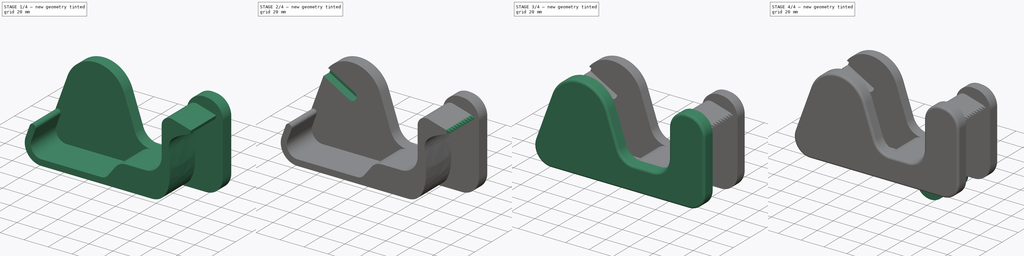
[diagram: build sequence overview — one tinted view per stage of 4, left to right]
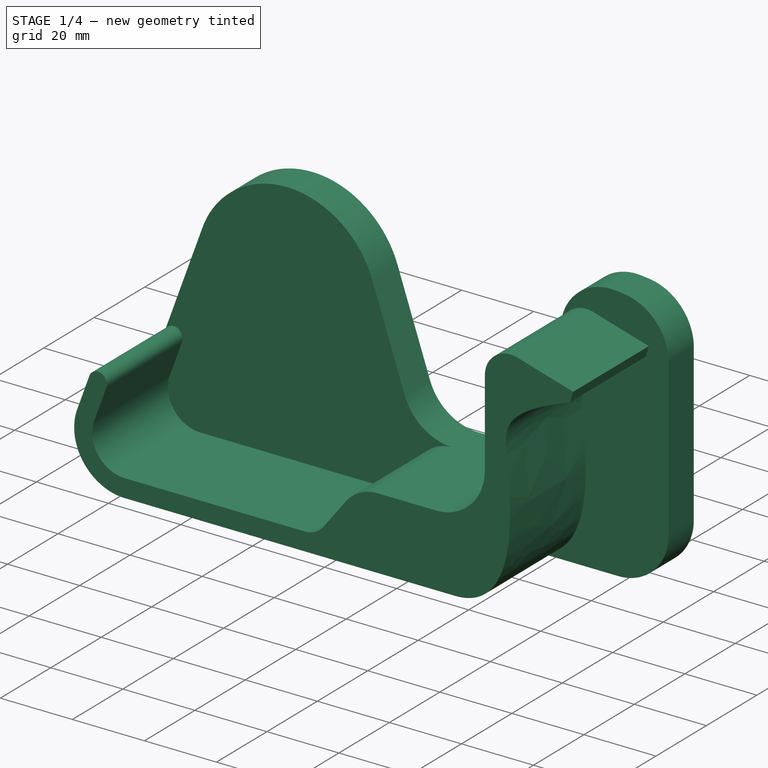
[diagram: stage 1 of 4 — iso view after this stage's code; geometry added in this stage tinted green]
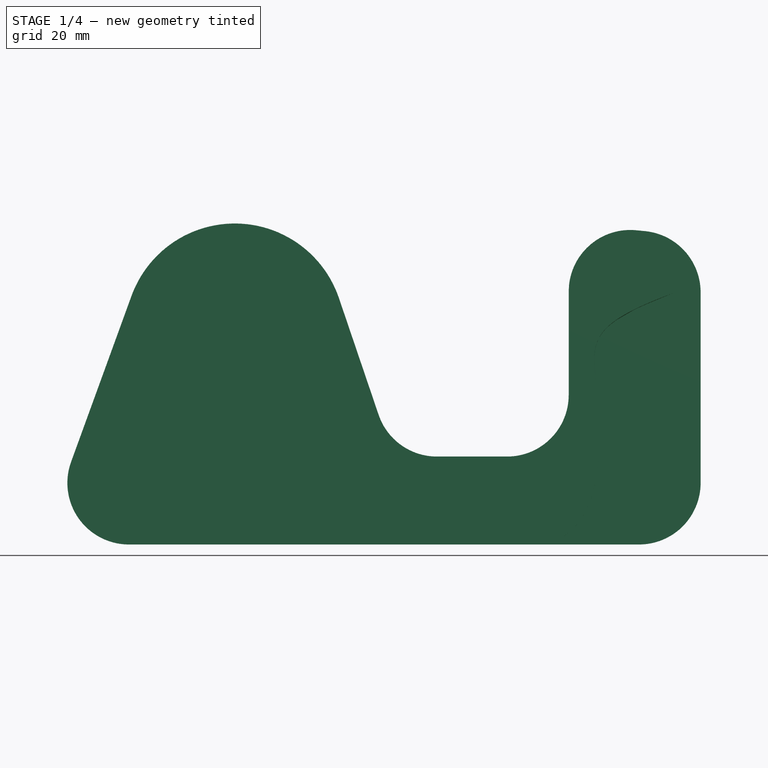
[diagram: stage 1 of 4 — front view after this stage's code; geometry added in this stage tinted green]
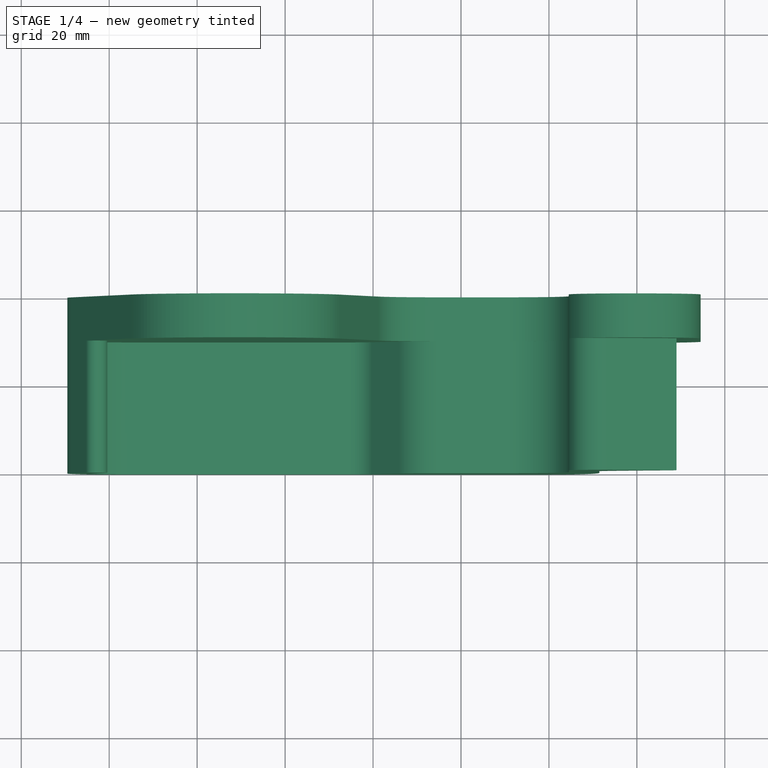
[diagram: stage 1 of 4 — top view after this stage's code; geometry added in this stage tinted green]
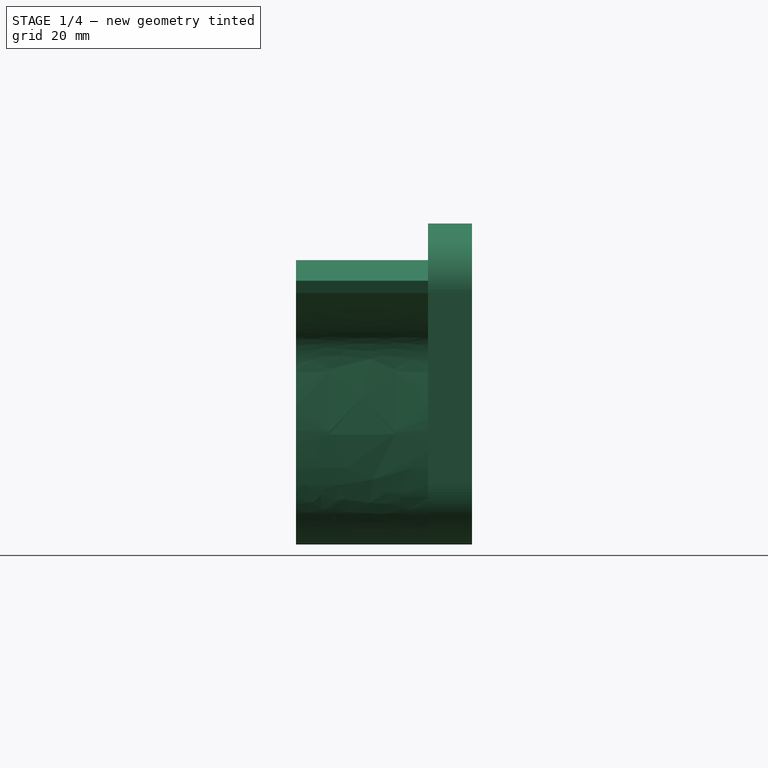
[diagram: stage 1 of 4 — right view after this stage's code; geometry added in this stage tinted green]
FCSTD DOCUMENT  (FreeCAD 1.0R39285 (Git))
Label: tape_cutter_v5
License: All rights reserved
objects: Sketcher::SketchObject×8, PartDesign::Pad×6, PartDesign::Fillet×2, PartDesign::Pocket×2, PartDesign::Body×2, PartDesign::Plane×1, PartDesign::Mirrored×1
note: 51 computed .brp shape members not serialized (recipe doc carries the construction recipe); baked Part::Feature solids carry a one-line shape summary decoded from their .brp

FEATURE [Sketcher::SketchObject] Sketch
  ArcFitTolerance = 1e-06
  AttachmentSupport = -> [XZ_Plane]
  FullyConstrained = false
  MakeInternals = false
  MapMode = 5
  Placement = pos=(0,0,0) rot=(1,0,0;1.5708rad)
  sketch-geometry (10):
    g0: Circle [constr] CenterX=-71.4307 CenterY=48 CenterZ=0 NormalX=0 NormalY=0 NormalZ=1 AngleXU=0 Radius=12.7
    g1: ArcOfCircle CenterX=-71.4307 CenterY=48 CenterZ=0 NormalX=0 NormalY=0 NormalZ=1 AngleXU=0 Radius=25 StartAngle=0.327726 EndAngle=2.79253
    g2: LineSegment StartX=-94.9231 StartY=56.5505 StartZ=0 EndX=-115.506 EndY=0 EndZ=0
    g3: LineSegment StartX=-47.7613 StartY=56.0473 StartZ=0 EndX=-35.5058 EndY=20 EndZ=0
    g4: Circle [constr] CenterX=-71.4307 CenterY=48 CenterZ=0 NormalX=0 NormalY=0 NormalZ=1 AngleXU=0 Radius=38
    g5: LineSegment StartX=-115.506 StartY=0 StartZ=0 EndX=34.4942 EndY=0 EndZ=0
    g6: LineSegment StartX=-35.5058 StartY=20 StartZ=0 EndX=4.49425 EndY=20 EndZ=0
    g7: LineSegment StartX=4.49425 StartY=20 StartZ=0 EndX=4.49425 EndY=73 EndZ=0
    g8: LineSegment StartX=4.49425 StartY=73 StartZ=0 EndX=34.4942 EndY=70 EndZ=0
    g9: LineSegment StartX=34.4942 StartY=70 StartZ=0 EndX=34.4942 EndY=0 EndZ=0
  constraints (26):
    c: Diameter(g0) = 25.4
    c: Diameter(g1) = 50
    c: Tangent(g1,g2) = -1.5708
    c: Tangent(g1,g3) = 1.5708
    c: Coincident(g1,g0)
    c: Diameter(g4) = 76
    c: Coincident(g4,g0)
    c: PointOnObject(g5,g-1)
    c: PointOnObject(g5,g-1)
    c: Coincident(g2,g5)
    c: Coincident(g3,g6)
    c: Horizontal(g6)
    c: Coincident(g6,g7)
    c: Vertical(g7)
    c: Coincident(g7,g8)
    c: Coincident(g8,g9)
    c: Coincident(g9,g5)
    c: Vertical(g9)
    c: DistanceX(g8,g8) = 30
    c: Distance(g0,g5) = 48
    c: Distance(g5,g6) = 20
    c: DistanceX(g6,g6) = 40
    c: Distance(g7,g5) = 73
    c: DistanceY(g9,g9) = 70
    c: DistanceX(g5,g5) = 150
    c: Angle(g5,g2) = 1.22173
FEATURE [PartDesign::Pad] Pad
  Direction = (0,-1,2e-16)
  Length = 10
  Length2 = 10
  Placement = pos=(0,0,0) rot=(1,0,0;1.5708rad)
  Profile = -> Sketch
  ReferenceAxis = -> Sketch [N_Axis]
  Refine = true
  Suppressed = false
  Type = 0
FEATURE [PartDesign::Fillet] Fillet
  Base = -> Pad [Edge17,Edge20,Edge5,Edge8,Edge14,Edge11]
  BaseFeature = -> Pad
  Placement = pos=(0,0,0) rot=(1,0,0;1.5708rad)
  Radius = 14
  Refine = true
  SupportTransform = false
  Suppressed = false
  UseAllEdges = false
FEATURE [Sketcher::SketchObject] Sketch001
  ArcFitTolerance = 1e-06
  AttachmentSupport = -> [Fillet]
  ExternalGeometry = -> [Fillet]
  FullyConstrained = false
  MakeInternals = false
  MapMode = 5
  Placement = pos=(0,-10,0) rot=(1,0,0;1.5708rad)
  sketch-geometry (31):
    g0: ArcOfCircle CenterX=-95.5117 CenterY=14 CenterZ=0 NormalX=0 NormalY=0 NormalZ=1 AngleXU=0 Radius=14 StartAngle=2.79253 EndAngle=4.71239
    g1: LineSegment StartX=-108.667 StartY=18.7883 StartZ=0 EndX=-105.279 EndY=28.0979 EndZ=0
    g2: ArcOfCircle CenterX=-95.5117 CenterY=14 CenterZ=0 NormalX=0 NormalY=0 NormalZ=1 AngleXU=0 Radius=9 StartAngle=2.79253 EndAngle=4.71239
    g3: LineSegment [constr] StartX=-95.5117 StartY=14 StartZ=0 EndX=-108.667 EndY=18.7883 EndZ=0
    g4: LineSegment [constr] StartX=-105.279 StartY=28.0979 StartZ=0 EndX=-91.8856 EndY=23.2232 EndZ=0
    g5: LineSegment StartX=-103.969 StartY=17.0782 StartZ=0 EndX=-100.58 EndY=26.3878 EndZ=0
    g6: ArcOfCircle CenterX=-102.93 CenterY=27.2429 CenterZ=0 NormalX=0 NormalY=0 NormalZ=1 AngleXU=0 Radius=2.5 StartAngle=5.93412 EndAngle=9.07571
    g7: LineSegment StartX=-95.5117 StartY=5 StartZ=0 EndX=-45.503 EndY=5 EndZ=0
    g8: LineSegment StartX=-95.5117 StartY=-5.3e-15 StartZ=0 EndX=-3.83506 EndY=2.2e-15 EndZ=0
    g9: LineSegment StartX=4.49425 StartY=34.042 StartZ=0 EndX=4.49425 EndY=57.5302 EndZ=0
    g10: ArcOfCircle CenterX=11.648 CenterY=57.5302 CenterZ=0 NormalX=0 NormalY=0 NormalZ=1 AngleXU=0 Radius=7.15375 StartAngle=1.28978 EndAngle=3.14159
    g11: LineSegment StartX=13.6319 StartY=64.4033 StartZ=0 EndX=29.0043 EndY=59.9661 EndZ=0
    g12: LineSegment [constr] StartX=11.648 StartY=57.5302 StartZ=0 EndX=13.6319 EndY=64.4033 EndZ=0
    g13: LineSegment [constr] StartX=4.49425 StartY=57.5302 StartZ=0 EndX=11.648 EndY=57.5302 EndZ=0
    g14: LineSegment StartX=29.0043 StartY=59.9661 StartZ=0 EndX=28.194 EndY=57.1588 EndZ=0
    g15-g19: Circle [constr] x5 (B-spline internal-alignment scaffolding for g20; pole/knot coordinates omitted)
    g20: BSplineCurve PolesCount=5 KnotsCount=3 Degree=3 IsPeriodic=0
    g21: GeomPoint [constr] X=-3.83506 Y=2.2e-15 Z=0
    g22: GeomPoint [constr] X=11.0375 Y=33.355 Z=0
    g23: GeomPoint [constr] X=28.194 Y=57.1588 Z=0
    g24: ArcOfCircle CenterX=-45.503 CenterY=11.5408 CenterZ=0 NormalX=0 NormalY=0 NormalZ=1 AngleXU=0 Radius=6.54084 StartAngle=4.71239 EndAngle=5.62454
    g25: GeomPoint [constr] X=-22.8913 Y=5 Z=0
    g26: LineSegment StartX=-40.3304 StartY=7.53753 StartZ=0 EndX=-34.0397 EndY=15.6657 EndZ=0
    g27: LineSegment StartX=-25.2044 StartY=20 StartZ=0 EndX=-9.50634 EndY=20 EndZ=0
    g28: ArcOfCircle CenterX=-25.2044 CenterY=8.82764 CenterZ=0 NormalX=0 NormalY=0 NormalZ=1 AngleXU=0 Radius=11.1724 StartAngle=1.5708 EndAngle=2.48294
    g29: GeomPoint [constr] X=-30.6852 Y=20 Z=0
    g30: ArcOfCircle CenterX=-9.19953 CenterY=33.6947 CenterZ=0 NormalX=0 NormalY=0 NormalZ=1 AngleXU=0 Radius=13.6982 StartAngle=4.68999 EndAngle=6.30854
  constraints (53):
    c: Coincident(g0,g-8)
    c: Coincident(g0,g-9)
    c: Coincident(g1,g-9)
    c: PointOnObject(g1,g-9)
    c: Radius(g2) = 9
    c: Coincident(g2,g0)
    c: Vertical(g2,g0)
    c: Coincident(g3,g0)
    c: Coincident(g3,g0)
    c: PointOnObject(g2,g3)
    c: Coincident(g4,g1)
    c: Parallel(g4,g3)
    c: Coincident(g5,g2)
    c: PointOnObject(g5,g4)
    c: Parallel(g5,g1)
    c: PointOnObject(g6,g4)
    c: Coincident(g6,g1)
    c: Coincident(g6,g5)
    c: Coincident(g7,g2)
    c: Horizontal(g7)
    c: Coincident(g9,g-6)
    c: Vertical(g9)
    c: Coincident(g10,g9)
    c: Horizontal(g10,g9)
    c: Tangent(g11,g10) = 1.5708
    c: Coincident(g12,g10)
    c: Coincident(g12,g10)
    c: Coincident(g13,g9)
    c: Coincident(g13,g10)
    c: Distance(g11,g11) = 16
    c: Coincident(g14,g11)
    c: Angle(g11,g14) = 1.5708
    c: Weight(g15) = 1
    c: Equal(g15, g16-g19) x4
    c: InternalAlignment(g15-g19 -> g20) x5
    c: InternalAlignment(g21,g20)
    c: InternalAlignment(g22,g20)
    c: InternalAlignment(g23,g20)
    c: Coincident(g19,g14)
    c: PointOnObject(g16,g-3)
    c: Coincident(g20,g8)
    c: PointOnObject(g8,g-3)
    c: PointOnObject(g25,g7)
    c: Tangent(g7,g24) = -1.5708
    c: Tangent(g24,g26) = -1.5708
    c: Horizontal(g27)
    c: PointOnObject(g29,g26)
    c: PointOnObject(g29,g27)
    c: Tangent(g26,g28) = 1.5708
    c: Tangent(g27,g28) = 1.5708
    c: Tangent(g0,g8) = -1.5708
    c: Coincident(g30,g27)
    c: Coincident(g30,g9)
FEATURE [PartDesign::Pad] Pad001
  BaseFeature = -> Fillet
  Direction = (0,-1,2e-16)
  Length = 30
  Length2 = 10
  Placement = pos=(0,0,0) rot=(1,0,0;1.5708rad)
  Profile = -> Sketch001
  ReferenceAxis = -> Sketch001 [N_Axis]
  Refine = true
  Suppressed = false
  Type = 0
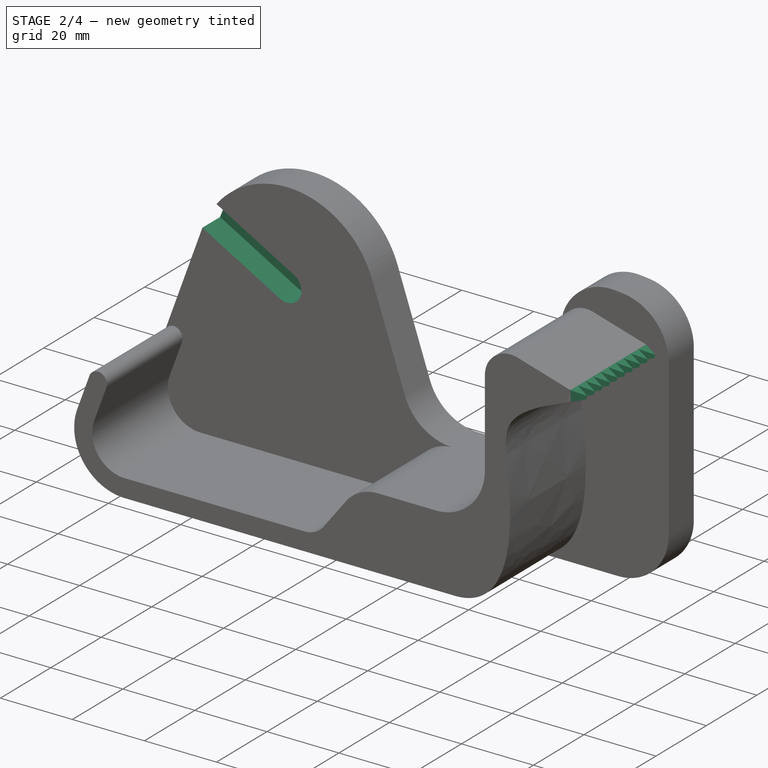
[diagram: stage 2 of 4 — iso view after this stage's code; geometry added in this stage tinted green]
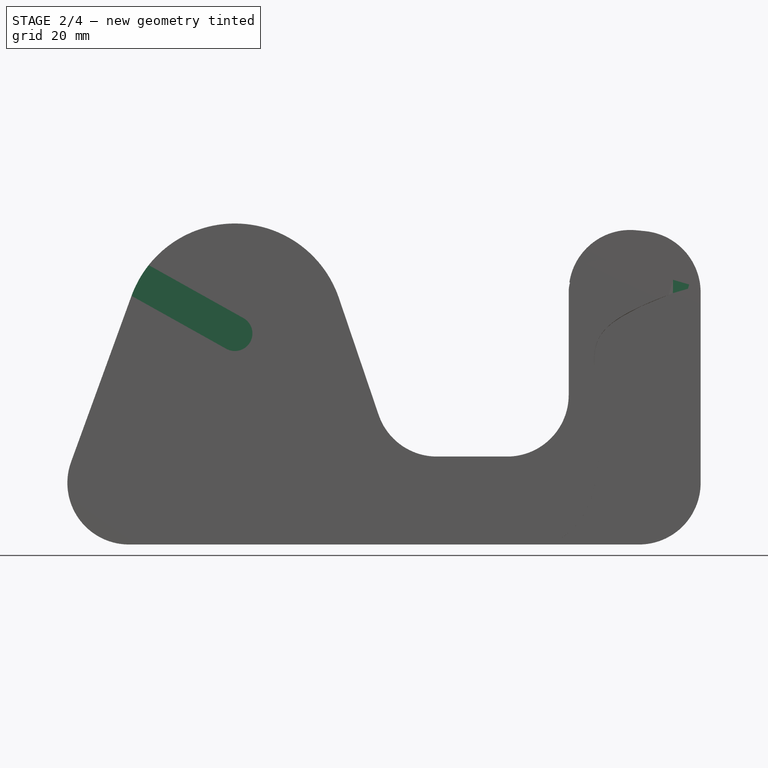
[diagram: stage 2 of 4 — front view after this stage's code; geometry added in this stage tinted green]
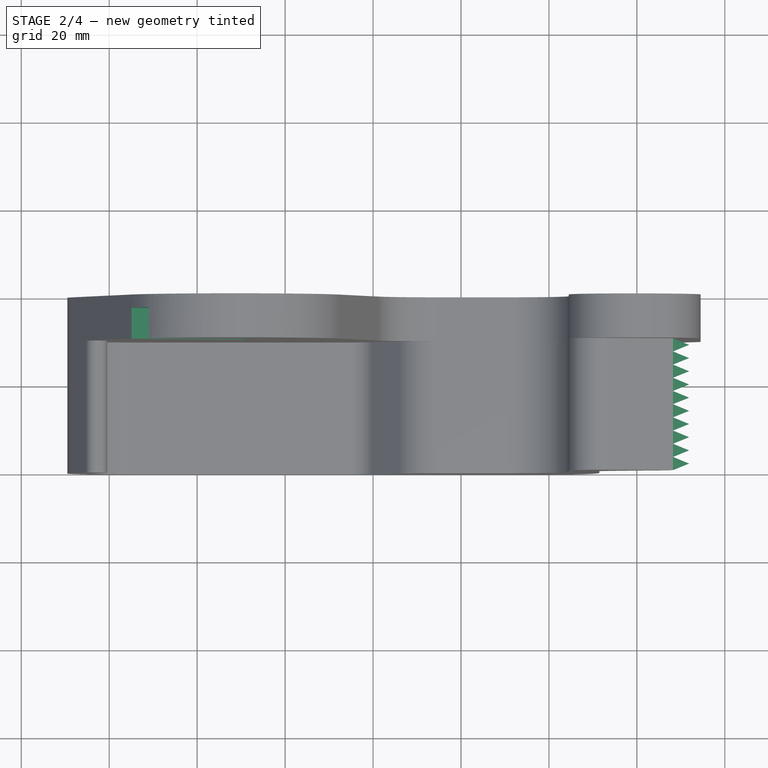
[diagram: stage 2 of 4 — top view after this stage's code; geometry added in this stage tinted green]
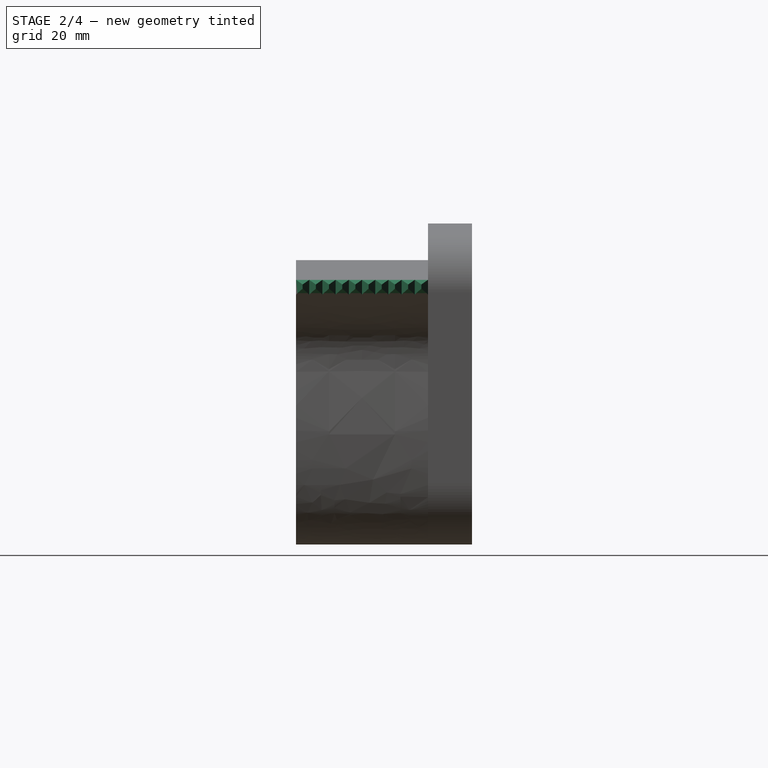
[diagram: stage 2 of 4 — right view after this stage's code; geometry added in this stage tinted green]
FEATURE [Sketcher::SketchObject] Sketch002
  ArcFitTolerance = 1e-06
  AttachmentSupport = -> [Pad001]
  ExternalGeometry = -> [Pad001]
  FullyConstrained = true
  MakeInternals = false
  MapMode = 5
  Placement = pos=(0,-10,0) rot=(1,0,0;1.5708rad)
  sketch-geometry (4):
    g0: LineSegment StartX=29.0043 StartY=59.9661 StartZ=0 EndX=31.8867 EndY=59.1341 EndZ=0
    g1: LineSegment StartX=31.8867 StartY=59.1341 StartZ=0 EndX=31.6093 EndY=58.1733 EndZ=0
    g2: LineSegment StartX=28.194 StartY=57.1588 StartZ=0 EndX=31.6093 EndY=58.1733 EndZ=0
    g3: LineSegment StartX=29.0043 StartY=59.9661 StartZ=0 EndX=28.194 EndY=57.1588 EndZ=0
  constraints (10):
    c: Coincident(g0,g-4)
    c: Angle(g0,g-4) = 3.14159
    c: Distance(g0,g0) = 3
    c: Coincident(g1,g0)
    c: Coincident(g2,g-3)
    c: Coincident(g2,g1)
    c: Angle(g0,g1) = 1.5708
    c: Distance(g1,g1) = 1
    c: Coincident(g3,g0)
    c: Coincident(g3,g2)
FEATURE [PartDesign::Pad] Pad002
  BaseFeature = -> Pad001
  Direction = (0,-1,2e-16)
  Length = 30
  Length2 = 10
  Placement = pos=(0,0,0) rot=(1,0,0;1.5708rad)
  Profile = -> Sketch002
  ReferenceAxis = -> Sketch002 [N_Axis]
  Refine = true
  Suppressed = false
  Type = 0
FEATURE [Sketcher::SketchObject] Sketch003
  ArcFitTolerance = 1e-06
  AttachmentSupport = -> [Pad002]
  ExternalGeometry = -> [Pad002]
  FullyConstrained = false
  MakeInternals = false
  MapMode = 5
  Placement = pos=(18.2087,1.57e-14,63.0822) rot=(0.140044,0,0.990145;3.14159rad)
  sketch-geometry (43):
    g0: LineSegment [constr] StartX=-10.4228 StartY=40 StartZ=0 EndX=-10.4228 EndY=37 EndZ=0
    g1: LineSegment [constr] StartX=-10.4228 StartY=37 StartZ=0 EndX=-10.4228 EndY=34 EndZ=0
    g2: LineSegment [constr] StartX=-10.4228 StartY=34 StartZ=0 EndX=-10.4228 EndY=31 EndZ=0
    g3: LineSegment [constr] StartX=-10.4228 StartY=31 StartZ=0 EndX=-10.4228 EndY=28 EndZ=0
    g4: LineSegment [constr] StartX=-10.4228 StartY=28 StartZ=0 EndX=-10.4228 EndY=25 EndZ=0
    g5: LineSegment [constr] StartX=-10.4228 StartY=25 StartZ=0 EndX=-10.4228 EndY=22 EndZ=0
    g6: LineSegment [constr] StartX=-10.4228 StartY=22 StartZ=0 EndX=-10.4228 EndY=19 EndZ=0
    g7: LineSegment [constr] StartX=-10.4228 StartY=19 StartZ=0 EndX=-10.4228 EndY=16 EndZ=0
    g8: LineSegment [constr] StartX=-10.4228 StartY=16 StartZ=0 EndX=-10.4228 EndY=13 EndZ=0
    g9: LineSegment [constr] StartX=-10.4228 StartY=13 StartZ=0 EndX=-10.4228 EndY=10 EndZ=0
    g10: LineSegment StartX=-14.2363 StartY=40 StartZ=0 EndX=-14.2363 EndY=38.5 EndZ=0
    g11: LineSegment StartX=-14.2363 StartY=38.5 StartZ=0 EndX=-14.2363 EndY=35.5 EndZ=0
    g12: LineSegment StartX=-14.2363 StartY=35.5 StartZ=0 EndX=-14.2363 EndY=32.5 EndZ=0
    g13: LineSegment StartX=-14.2363 StartY=32.5 StartZ=0 EndX=-14.2363 EndY=29.5 EndZ=0
    g14: LineSegment StartX=-14.2363 StartY=29.5 StartZ=0 EndX=-14.2363 EndY=26.5 EndZ=0
    g15: LineSegment StartX=-14.2363 StartY=26.5 StartZ=0 EndX=-14.2363 EndY=23.5 EndZ=0
    g16: LineSegment StartX=-14.2363 StartY=23.5 StartZ=0 EndX=-14.2363 EndY=20.5 EndZ=0
    g17: LineSegment StartX=-14.2363 StartY=20.5 StartZ=0 EndX=-14.2363 EndY=17.5 EndZ=0
    g18: LineSegment StartX=-14.2363 StartY=17.5 StartZ=0 EndX=-14.2363 EndY=14.5 EndZ=0
    g19: LineSegment StartX=-14.2363 StartY=14.5 StartZ=0 EndX=-14.2363 EndY=11.5 EndZ=0
    g20: LineSegment StartX=-10.4228 StartY=40 StartZ=0 EndX=-14.2363 EndY=38.5 EndZ=0
    g21: LineSegment StartX=-14.2363 StartY=38.5 StartZ=0 EndX=-10.4228 EndY=37 EndZ=0
    g22: LineSegment StartX=-10.4228 StartY=37 StartZ=0 EndX=-14.2363 EndY=35.5 EndZ=0
    g23: LineSegment StartX=-14.2363 StartY=35.5 StartZ=0 EndX=-10.4228 EndY=34 EndZ=0
    g24: LineSegment StartX=-10.4228 StartY=34 StartZ=0 EndX=-14.2363 EndY=32.5 EndZ=0
    g25: LineSegment StartX=-14.2363 StartY=32.5 StartZ=0 EndX=-10.4228 EndY=31 EndZ=0
    g26: LineSegment StartX=-10.4228 StartY=31 StartZ=0 EndX=-14.2363 EndY=29.5 EndZ=0
    g27: LineSegment StartX=-14.2363 StartY=29.5 StartZ=0 EndX=-10.4228 EndY=28 EndZ=0
    g28: LineSegment StartX=-10.4228 StartY=28 StartZ=0 EndX=-14.2363 EndY=26.5 EndZ=0
    g29: LineSegment StartX=-14.2363 StartY=26.5 StartZ=0 EndX=-10.4228 EndY=25 EndZ=0
    g30: LineSegment StartX=-10.4228 StartY=25 StartZ=0 EndX=-14.2363 EndY=23.5 EndZ=0
    g31: LineSegment StartX=-14.2363 StartY=23.5 StartZ=0 EndX=-10.4228 EndY=22 EndZ=0
    g32: LineSegment StartX=-10.4228 StartY=22 StartZ=0 EndX=-14.2363 EndY=20.5 EndZ=0
    g33: LineSegment StartX=-14.2363 StartY=20.5 StartZ=0 EndX=-10.4228 EndY=19 EndZ=0
    g34: LineSegment StartX=-10.4228 StartY=19 StartZ=0 EndX=-14.2363 EndY=17.5 EndZ=0
    g35: LineSegment StartX=-14.2363 StartY=17.5 StartZ=0 EndX=-10.4228 EndY=16 EndZ=0
    g36: LineSegment StartX=-10.4228 StartY=16 StartZ=0 EndX=-14.2363 EndY=14.5 EndZ=0
    g37: LineSegment StartX=-14.2363 StartY=14.5 StartZ=0 EndX=-10.4228 EndY=13 EndZ=0
    g38: LineSegment StartX=-10.4228 StartY=13 StartZ=0 EndX=-14.2363 EndY=11.5 EndZ=0
    g39: LineSegment StartX=-14.2363 StartY=11.5 StartZ=0 EndX=-10.4228 EndY=10 EndZ=0
    g40: LineSegment StartX=-10.4228 StartY=40 StartZ=0 EndX=-14.2363 EndY=40 EndZ=0
    g41: LineSegment StartX=-14.2363 StartY=11.5 StartZ=0 EndX=-14.2363 EndY=10 EndZ=0
    g42: LineSegment StartX=-14.2363 StartY=10 StartZ=0 EndX=-10.4228 EndY=10 EndZ=0
  constraints (104):
    c: PointOnObject(g0,g-4)
    c: Vertical(g0)
    c: Coincident(g0,g1)
    c: Vertical(g1)
    c: Coincident(g1,g2)
    c: Vertical(g2)
    c: Coincident(g2,g3)
    c: Vertical(g3)
    c: Coincident(g3,g4)
    c: Vertical(g4)
    c: Coincident(g4,g5)
    c: Vertical(g5)
    c: Coincident(g5,g6)
    c: Vertical(g6)
    c: Coincident(g6,g7)
    c: Vertical(g7)
    c: Coincident(g7,g8)
    c: Vertical(g8)
    c: Coincident(g8,g9)
    c: Vertical(g9)
    c: DistanceY(g0,g0) = 3
    c: DistanceY(g1,g1) = 3
    c: DistanceY(g2,g2) = 3
    c: DistanceY(g3,g3) = 3
    c: DistanceY(g4,g4) = 3
    c: DistanceY(g5,g5) = 3
    c: DistanceY(g6,g6) = 3
    c: DistanceY(g7,g7) = 3
    c: DistanceY(g8,g8) = 3
    c: DistanceY(g9,g9) = 3
    c: Distance(g10) = 1.5
    c: Coincident(g10,g-4)
    c: PointOnObject(g10,g-3)
    c: Distance(g11) = 3
    c: Coincident(g11,g10)
    c: PointOnObject(g11,g-3)
    c: Distance(g12) = 3
    c: Coincident(g12,g11)
    c: PointOnObject(g12,g-3)
    c: Distance(g13) = 3
    c: Coincident(g13,g12)
    c: PointOnObject(g13,g-3)
    c: Distance(g14) = 3
    c: Coincident(g14,g13)
    c: PointOnObject(g14,g-3)
    c: Distance(g15) = 3
    c: Coincident(g15,g14)
    c: PointOnObject(g15,g-3)
    c: Distance(g16) = 3
    c: Coincident(g16,g15)
    c: PointOnObject(g16,g-3)
    c: Distance(g17) = 3
    c: Coincident(g17,g16)
    c: PointOnObject(g17,g-3)
    c: Distance(g18) = 3
    c: Coincident(g18,g17)
    c: PointOnObject(g18,g-3)
    c: Distance(g19) = 3
    c: Coincident(g19,g18)
    c: PointOnObject(g19,g-3)
    c: Coincident(g0,g20)
    c: Coincident(g20,g10)
    c: Coincident(g20,g21)
    c: Coincident(g21,g0)
    c: Coincident(g21,g22)
    c: Coincident(g22,g11)
    c: Coincident(g22,g23)
    c: Coincident(g23,g1)
    c: Coincident(g23,g24)
    c: Coincident(g24,g12)
    c: Coincident(g24,g25)
    c: Coincident(g25,g2)
    c: Coincident(g25,g26)
    c: Coincident(g26,g13)
    c: Coincident(g26,g27)
    c: Coincident(g27,g3)
    c: Coincident(g27,g28)
    c: Coincident(g28,g14)
    c: Coincident(g28,g29)
    c: Coincident(g29,g4)
    c: Coincident(g29,g30)
    c: Coincident(g30,g15)
    c: Coincident(g30,g31)
    c: Coincident(g31,g5)
    c: Coincident(g31,g32)
    c: Coincident(g32,g16)
    c: Coincident(g32,g33)
    c: Coincident(g33,g6)
    c: Coincident(g33,g34)
    c: Coincident(g34,g17)
    c: Coincident(g34,g35)
    c: Coincident(g35,g7)
    c: Coincident(g35,g36)
    c: Coincident(g36,g37)
    c: Coincident(g37,g8)
    c: Coincident(g37,g38)
    c: Coincident(g38,g19)
    c: Coincident(g38,g39)
    c: Coincident(g0,g40)
    c: Coincident(g40,g10)
    c: Coincident(g19,g41)
    c: Coincident(g41,g-3)
    c: Coincident(g41,g42)
    c: Coincident(g42,g9)
FEATURE [PartDesign::Pocket] Pocket
  BaseFeature = -> Pad002
  Direction = (-0.277329,0,-0.960775)
  Length = 5
  Length2 = 5
  Placement = pos=(0,0,0) rot=(1,0,0;1.5708rad)
  Profile = -> Sketch003
  ReferenceAxis = -> Sketch003 [N_Axis]
  Refine = true
  Suppressed = false
  Type = 0
FEATURE [Sketcher::SketchObject] Sketch004
  ArcFitTolerance = 1e-06
  AttachmentSupport = -> [Pocket]
  ExternalGeometry = -> [Pocket]
  FullyConstrained = false
  MakeInternals = false
  MapMode = 5
  Placement = pos=(0,-10,0) rot=(1,0,0;1.5708rad)
  sketch-geometry (5):
    g0: ArcOfCircle CenterX=-71.4307 CenterY=48 CenterZ=0 NormalX=0 NormalY=0 NormalZ=1 AngleXU=0 Radius=4 StartAngle=4.20263 EndAngle=7.34423
    g1: LineSegment StartX=-94.9231 StartY=56.5505 StartZ=0 EndX=-73.3826 EndY=44.5085 EndZ=0
    g2: LineSegment StartX=-91.0193 StartY=63.5334 StartZ=0 EndX=-69.4789 EndY=51.4915 EndZ=0
    g3: LineSegment StartX=-91.0193 StartY=63.5334 StartZ=0 EndX=-95.7188 EndY=61.1983 EndZ=0
    g4: LineSegment StartX=-95.7188 StartY=61.1983 StartZ=0 EndX=-94.9231 EndY=56.5505 EndZ=0
  constraints (10):
    c: Diameter(g0) = 8
    c: Coincident(g0,g-3)
    c: Coincident(g1,g-3)
    c: PointOnObject(g2,g-3)
    c: Parallel(g2,g1)
    c: Tangent(g0,g2) = 1.5708
    c: Tangent(g0,g1) = -1.5708
    c: Coincident(g2,g3)
    c: Coincident(g3,g4)
    c: Coincident(g4,g1)
FEATURE [PartDesign::Pocket] Pocket001
  BaseFeature = -> Pocket
  Direction = (0,1,-2e-16)
  Length = 7
  Length2 = 5
  Placement = pos=(0,0,0) rot=(1,0,0;1.5708rad)
  Profile = -> Sketch004
  ReferenceAxis = -> Sketch004 [N_Axis]
  Refine = true
  Suppressed = false
  Type = 0
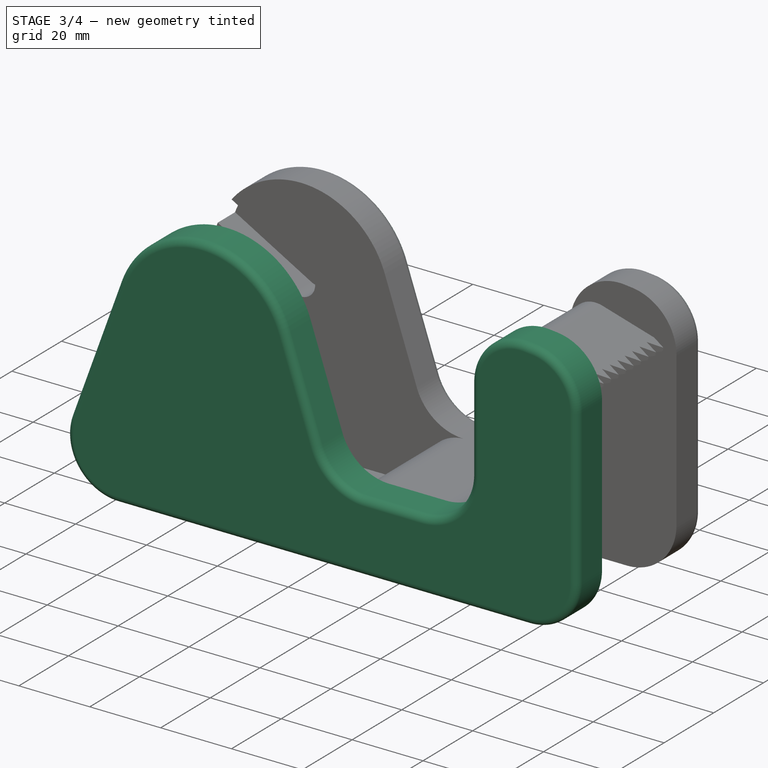
[diagram: stage 3 of 4 — iso view after this stage's code; geometry added in this stage tinted green]
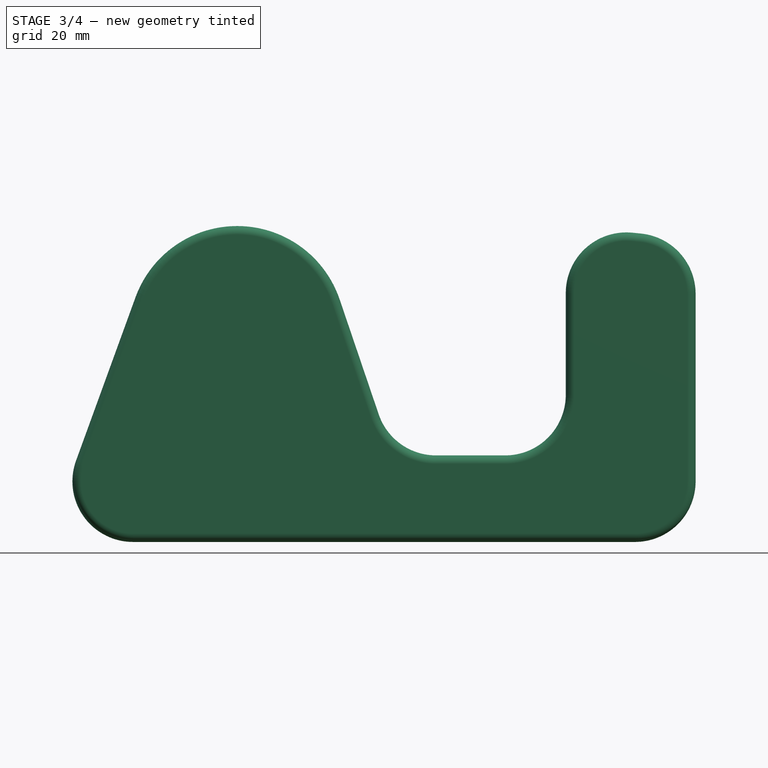
[diagram: stage 3 of 4 — front view after this stage's code; geometry added in this stage tinted green]
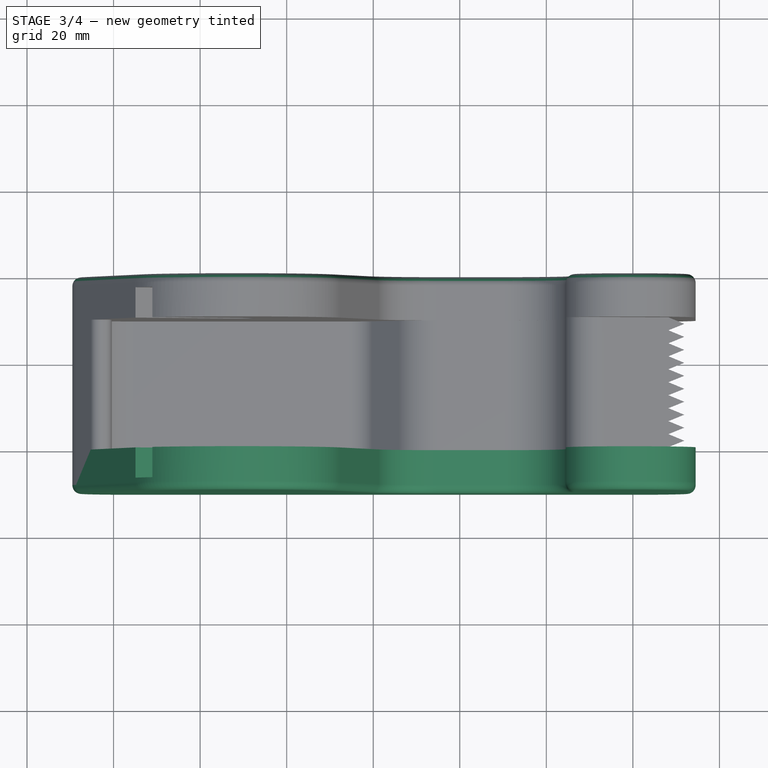
[diagram: stage 3 of 4 — top view after this stage's code; geometry added in this stage tinted green]
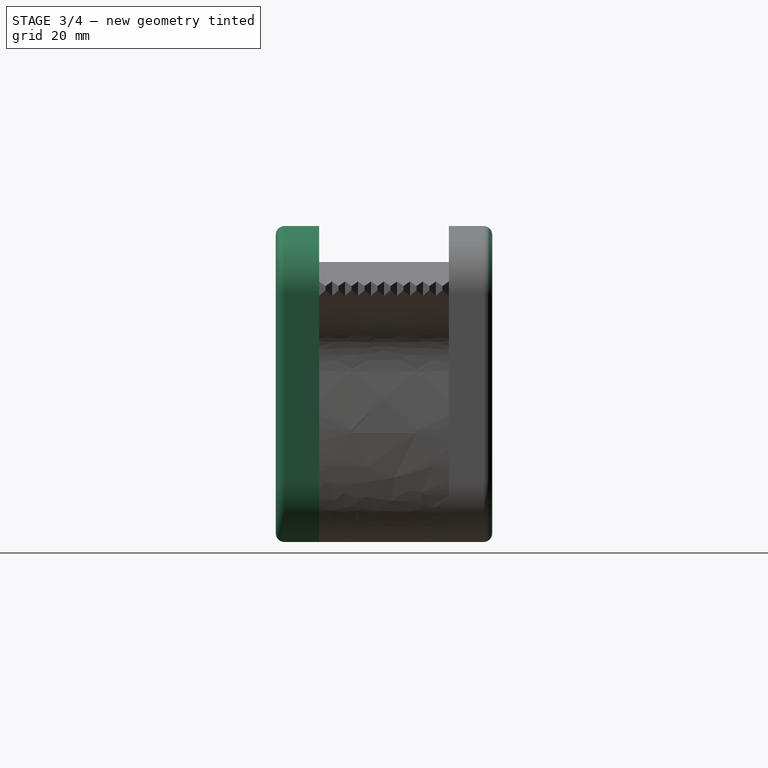
[diagram: stage 3 of 4 — right view after this stage's code; geometry added in this stage tinted green]
FEATURE [PartDesign::Plane] DatumPlane
  AttachmentOffset = pos=(0,0,15) rot=(0,0,1;0rad)
  AttachmentSupport = -> [Pocket001]
  Length = 167.675
  MapMode = 5
  Placement = pos=(0,-25,3.3e-15) rot=(1,0,0;1.5708rad)
  ResizeMode = 0
  Width = 121.751
FEATURE [PartDesign::Mirrored] Mirrored
  BaseFeature = -> Pocket001
  MirrorPlane = -> DatumPlane
  Placement = pos=(0,0,0) rot=(1,0,0;1.5708rad)
  Refine = true
  Suppressed = false
  TransformMode = 1
FEATURE [PartDesign::Body] Body001
  AllowCompound = false
  Group = -> [Sketch005,Pad003,Sketch006,Pad004,Sketch007,Pad005]
  Origin = -> Origin001
  Placement = pos=(-70.96,-4.65,56.93) rot=(0,0,1;0rad)
  Tip = -> Pad005
FEATURE [PartDesign::Fillet] Fillet001
  Base = -> Mirrored [Edge30,Edge3]
  BaseFeature = -> Mirrored
  Placement = pos=(0,0,0) rot=(1,0,0;1.5708rad)
  Radius = 2
  Refine = true
  SupportTransform = false
  Suppressed = false
  UseAllEdges = false
FEATURE [PartDesign::Body] Body
  AllowCompound = false
  Group = -> [Sketch,Pad,Fillet,Sketch001,Pad001,Sketch002,Pad002,Sketch003,Pocket,Sketch004,Pocket001,DatumPlane,Mirrored,Fillet001]
  Origin = -> Origin
  Tip = -> Fillet001
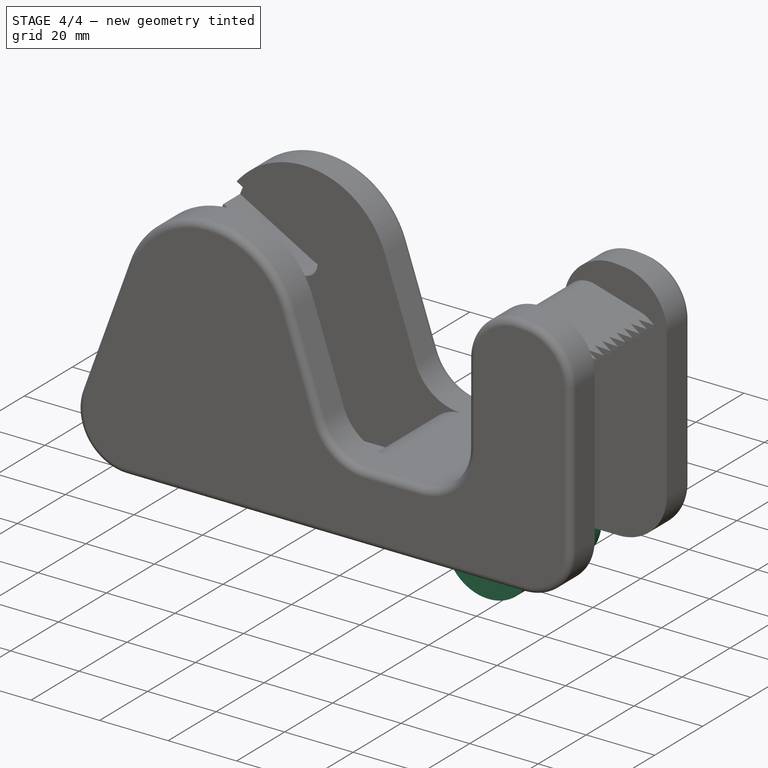
[diagram: stage 4 of 4 — iso view after this stage's code; geometry added in this stage tinted green]
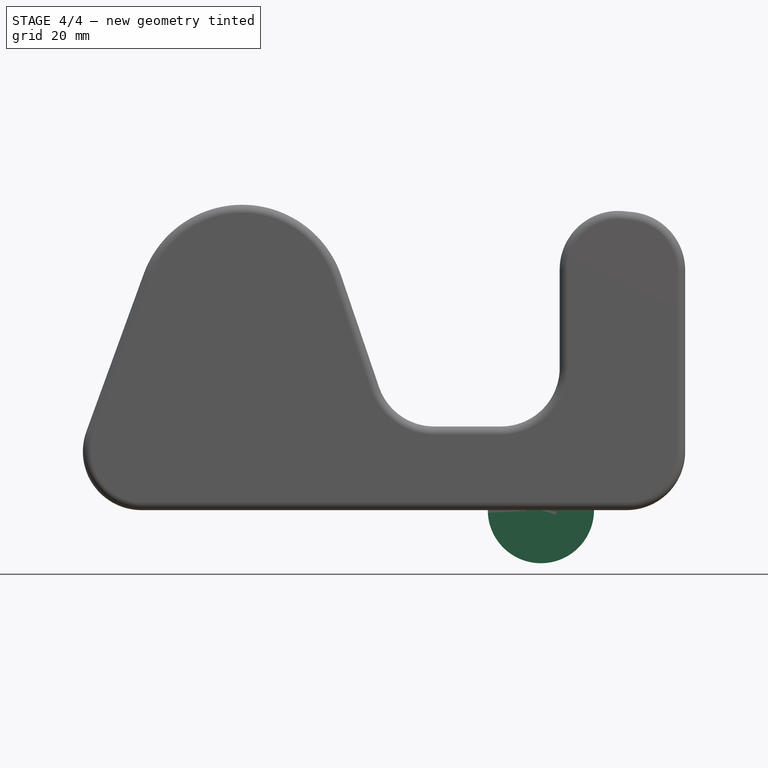
[diagram: stage 4 of 4 — front view after this stage's code; geometry added in this stage tinted green]
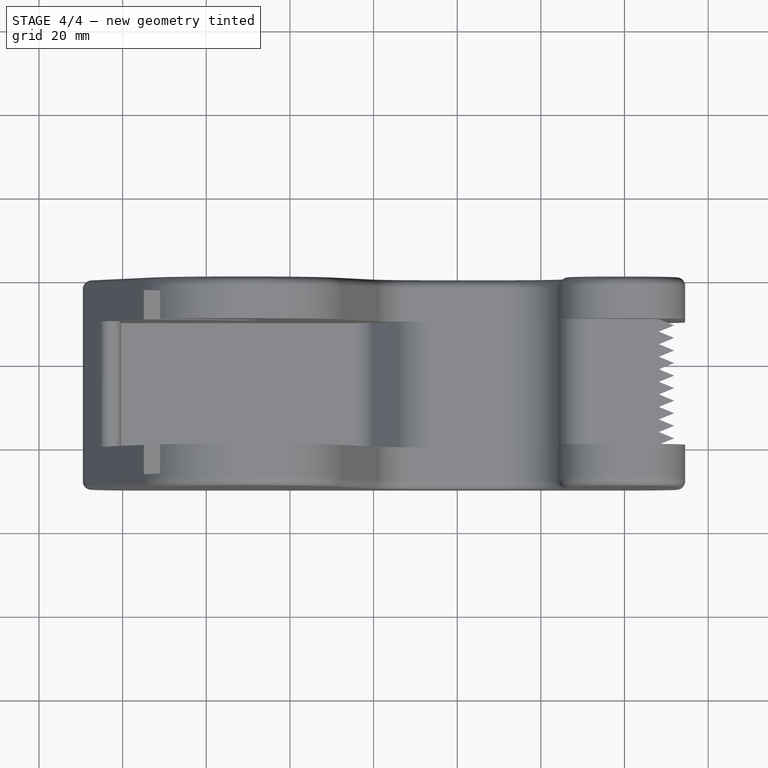
[diagram: stage 4 of 4 — top view after this stage's code; geometry added in this stage tinted green]
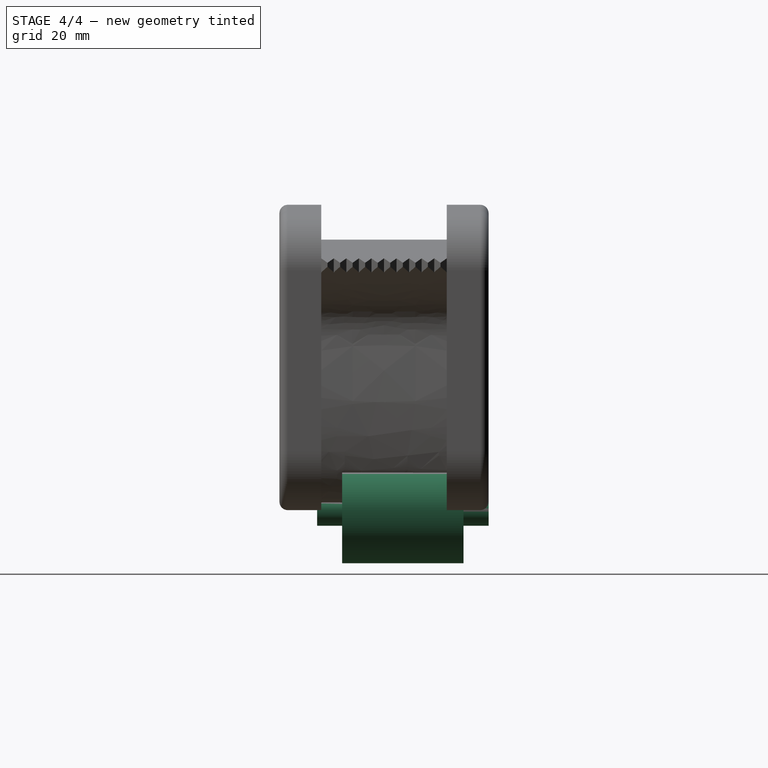
[diagram: stage 4 of 4 — right view after this stage's code; geometry added in this stage tinted green]
FEATURE [Sketcher::SketchObject] Sketch005
  ArcFitTolerance = 1e-06
  AttachmentSupport = -> [XZ_Plane001]
  FullyConstrained = true
  MakeInternals = false
  MapMode = 5
  Placement = pos=(0,0,0) rot=(1,0,0;1.5708rad)
  sketch-geometry (1):
    g0: Circle CenterX=0 CenterY=0 CenterZ=0 NormalX=0 NormalY=0 NormalZ=1 AngleXU=0 Radius=3.75
  constraints (2):
    c: Diameter(g0) = 7.5
    c: Coincident(g0,g-1)
FEATURE [PartDesign::Pad] Pad003
  Direction = (0,-1,2e-16)
  Length = 6
  Length2 = 10
  Placement = pos=(0,0,0) rot=(1,0,0;1.5708rad)
  Profile = -> Sketch005
  ReferenceAxis = -> Sketch005 [N_Axis]
  Refine = true
  Suppressed = false
  Type = 0
FEATURE [Sketcher::SketchObject] Sketch006
  ArcFitTolerance = 1e-06
  AttachmentSupport = -> [Pad003]
  FullyConstrained = true
  MakeInternals = false
  MapMode = 5
  Placement = pos=(0,-6,0) rot=(1,0,0;1.5708rad)
  sketch-geometry (1):
    g0: Circle CenterX=0 CenterY=0 CenterZ=0 NormalX=0 NormalY=0 NormalZ=1 AngleXU=0 Radius=12.7
  constraints (2):
    c: Coincident(g0,g-1)
    c: Diameter(g0) = 25.4
FEATURE [PartDesign::Pad] Pad004
  BaseFeature = -> Pad003
  Direction = (0,-1,2e-16)
  Length = 29
  Length2 = 10
  Placement = pos=(0,0,0) rot=(1,0,0;1.5708rad)
  Profile = -> Sketch006
  ReferenceAxis = -> Sketch006 [N_Axis]
  Refine = true
  Suppressed = false
  Type = 0
FEATURE [Sketcher::SketchObject] Sketch007
  ArcFitTolerance = 1e-06
  AttachmentSupport = -> [Pad004]
  FullyConstrained = true
  MakeInternals = false
  MapMode = 5
  Placement = pos=(0,-35,8.5e-15) rot=(1,0,0;1.5708rad)
  sketch-geometry (1):
    g0: Circle CenterX=0 CenterY=0 CenterZ=0 NormalX=0 NormalY=0 NormalZ=1 AngleXU=0 Radius=3.75
  constraints (2):
    c: Diameter(g0) = 7.5
    c: Coincident(g0,g-1)
FEATURE [PartDesign::Pad] Pad005
  BaseFeature = -> Pad004
  Direction = (0,-1,2e-16)
  Length = 6
  Length2 = 10
  Placement = pos=(0,0,0) rot=(1,0,0;1.5708rad)
  Profile = -> Sketch007
  ReferenceAxis = -> Sketch007 [N_Axis]
  Refine = true
  Suppressed = false
  Type = 0
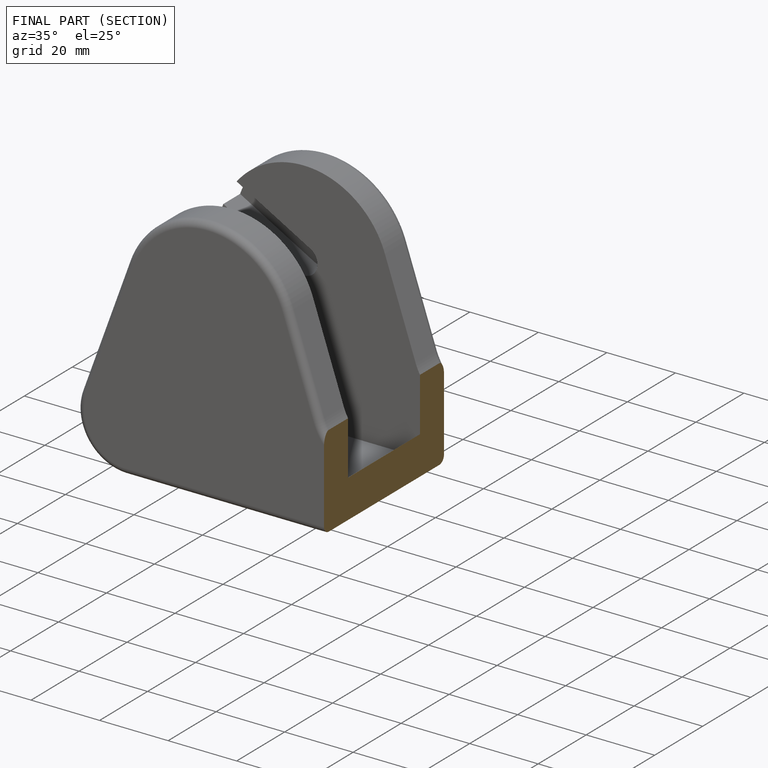
[diagram: finished part — half-section view (interior)]
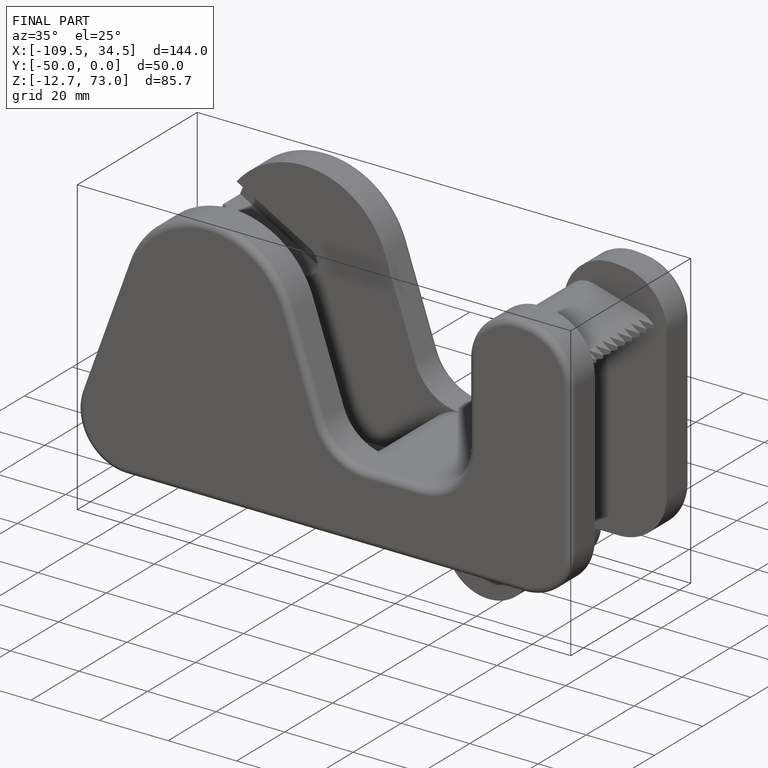
[diagram: finished part — iso view with bounding-box wireframe]
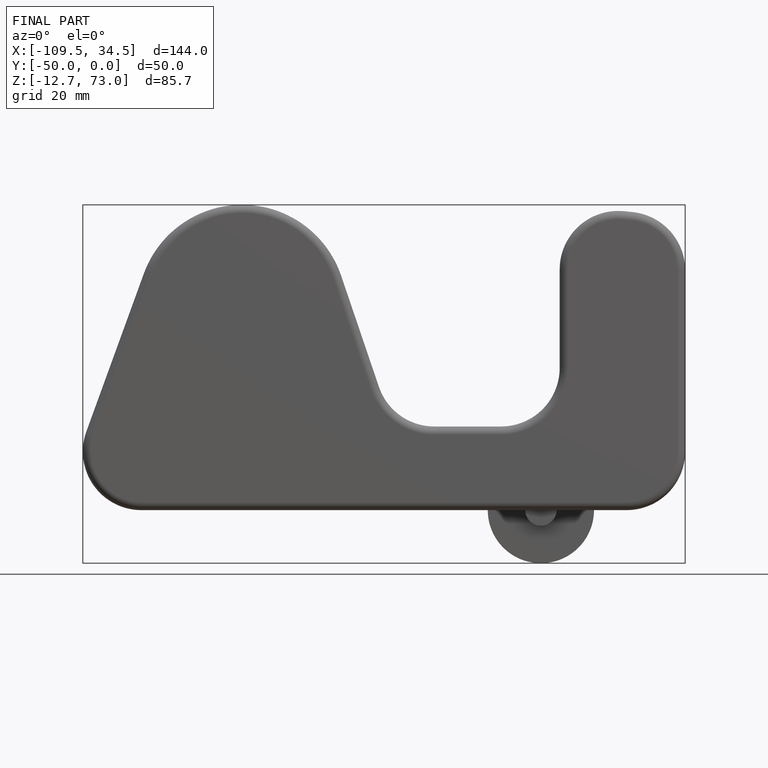
[diagram: finished part — front view with bounding-box wireframe]
